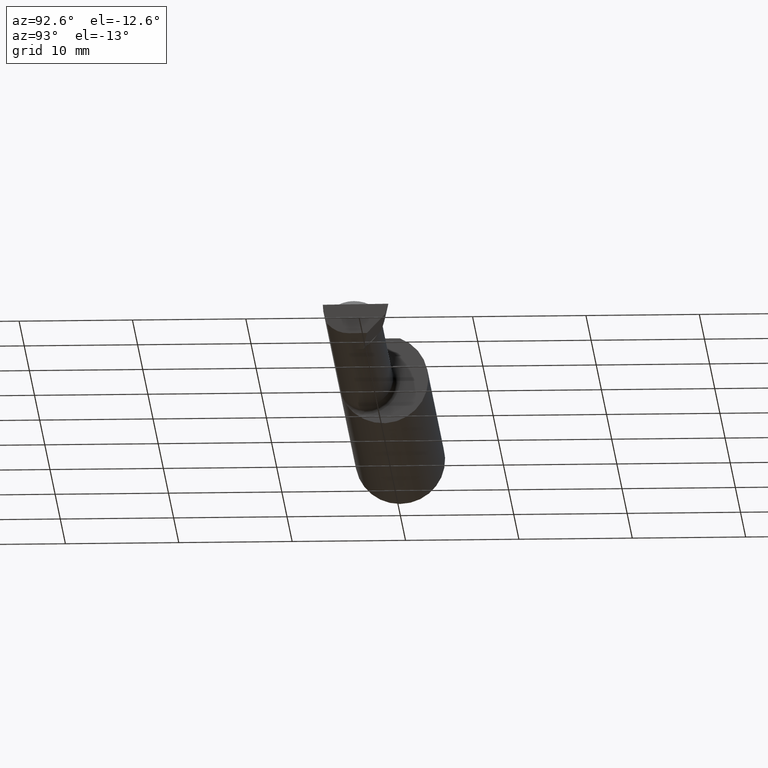
[diagram: clean part render]
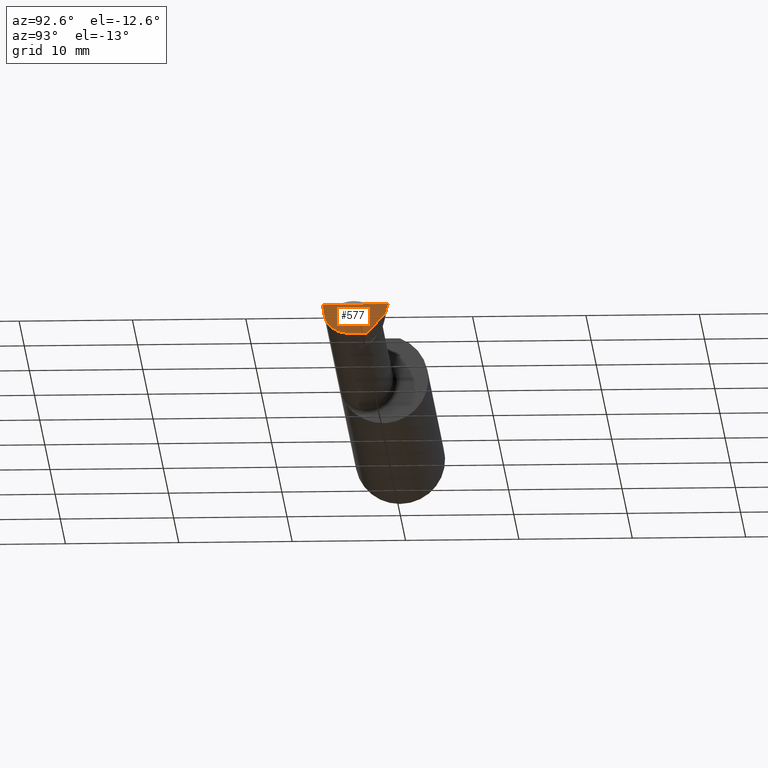
[diagram: same view with one face highlighted and labeled with its STEP entity id]
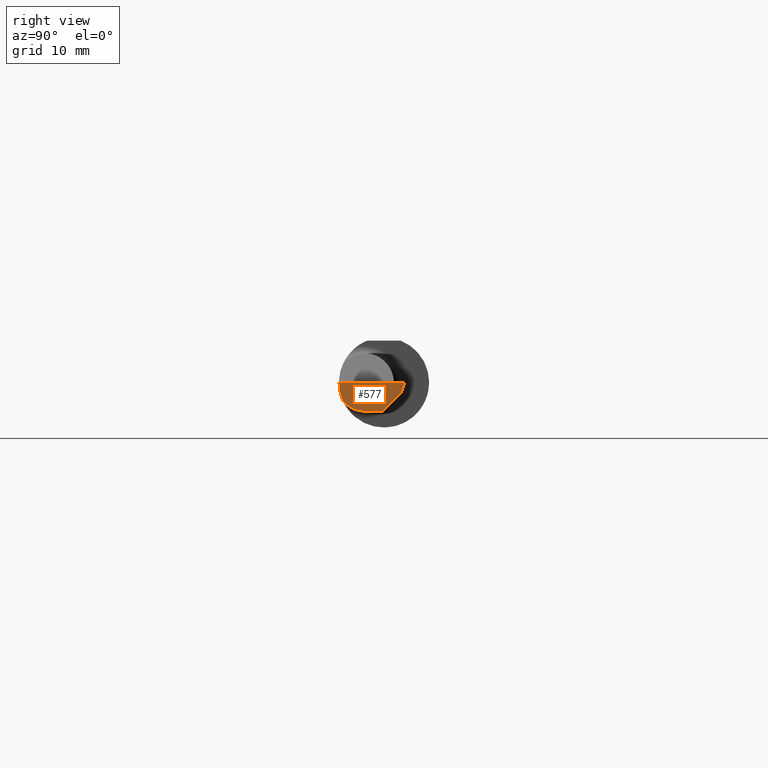
[diagram: same view with one face highlighted and labeled with its STEP entity id]
A machine part, auxiliary view. The second image highlights one B-rep face of the part: STEP entity #577.
A second angle (right view) of the same face is appended — the face is thin or edge-on in the first view.
In plain terms, the highlighted planar face has unit normal (-0.9922, 0.026, 0.1219).
Its self-contained STEP definition (entity closure, byte-faithful):
#9 = DIRECTION ( 'NONE',  ( 0.1240019227989686140, 0.3022330132596660612, 0.9451342385281262803 ) ) ;
#12 = ORIENTED_EDGE ( 'NONE', *, *, #209, .F. ) ;
#28 = EDGE_CURVE ( 'NONE', #164, #680, #353, .T. ) ;
#32 = LINE ( 'NONE', #33, #200 ) ;
#33 = CARTESIAN_POINT ( 'NONE',  ( 2.495690841152410577, 0.06258158045839970485, -0.03309662379331571036 ) ) ;
#63 = CARTESIAN_POINT ( 'NONE',  ( 2.500188977433819293, 0.07236059946466855131, 0.001440373173036951305 ) ) ;
#69 = EDGE_CURVE ( 'NONE', #670, #680, #316, .T. ) ;
#73 = CARTESIAN_POINT ( 'NONE',  ( 2.495407988494083629, 0.06070777456484782730, -0.03500000000000000333 ) ) ;
#95 = LINE ( 'NONE', #63, #612 ) ;
#96 = CARTESIAN_POINT ( 'NONE',  ( 2.486434241799654998, -0.1419939393939394501, -0.06484544066771573412 ) ) ;
#105 = VECTOR ( 'NONE', #614, 39.37007874015748143 ) ;
#129 = EDGE_CURVE ( 'NONE', #164, #139, #150, .T. ) ;
#139 = VERTEX_POINT ( 'NONE', #542 ) ;
#150 =( BOUNDED_CURVE ( )  B_SPLINE_CURVE ( 3, ( #96, #438, #380, #701 ),
 .UNSPECIFIED., .F., .F. ) 
 B_SPLINE_CURVE_WITH_KNOTS ( ( 4, 4 ),
 ( 0.9323538202062678915, 1.360746882514633382 ),
 .UNSPECIFIED. ) 
 CURVE ( )  GEOMETRIC_REPRESENTATION_ITEM ( )  RATIONAL_B_SPLINE_CURVE ( ( 1.000000000000000000, 0.9847649979006014576, 0.9847649979006014576, 1.000000000000000000 ) ) 
 REPRESENTATION_ITEM ( '' )  );
#151 = CARTESIAN_POINT ( 'NONE',  ( 2.484118579027826179, -0.06599999999999998923, -0.09990000000000000269 ) ) ;
#164 = VERTEX_POINT ( 'NONE', #507 ) ;
#174 = CARTESIAN_POINT ( 'NONE',  ( 2.484129461495571345, -0.06558441532346195868, -0.09990000000000000269 ) ) ;
#178 = EDGE_CURVE ( 'NONE', #322, #569, #95, .T. ) ;
#200 = VECTOR ( 'NONE', #422, 39.37007874015748854 ) ;
#209 = EDGE_CURVE ( 'NONE', #139, #569, #408, .T. ) ;
#214 = AXIS2_PLACEMENT_3D ( 'NONE', #224, #377, #511 ) ;
#224 = CARTESIAN_POINT ( 'NONE',  ( 2.482005098963840695, -0.1170392233017039929, -0.1062257522883767180 ) ) ;
#233 = CARTESIAN_POINT ( 'NONE',  ( 2.491576527842699562, -0.2497794236187485528, 6.912943690626120576E-17 ) ) ;
#260 = DIRECTION ( 'NONE',  ( -0.02617694830789217206, -0.9996573249755568158, 0.0000000000000000000 ) ) ;
#273 = ORIENTED_EDGE ( 'NONE', *, *, #129, .F. ) ;
#291 = ORIENTED_EDGE ( 'NONE', *, *, #69, .F. ) ;
#316 = LINE ( 'NONE', #174, #599 ) ;
#322 = VERTEX_POINT ( 'NONE', #73 ) ;
#353 =( BOUNDED_CURVE ( )  B_SPLINE_CURVE ( 3, ( #486, #374, #484, #151 ),
 .UNSPECIFIED., .F., .T. ) 
 B_SPLINE_CURVE_WITH_KNOTS ( ( 4, 4 ),
 ( 5.628843761710943028, 6.493234751459850074 ),
 .UNSPECIFIED. ) 
 CURVE ( )  GEOMETRIC_REPRESENTATION_ITEM ( )  RATIONAL_B_SPLINE_CURVE ( ( 1.000000000000000000, 0.9386988813357769468, 0.9386988813357769468, 1.000000000000000000 ) ) 
 REPRESENTATION_ITEM ( '' )  );
#363 = PLANE ( 'NONE',  #214 ) ;
#364 = EDGE_CURVE ( 'NONE', #670, #322, #32, .T. ) ;
#374 = CARTESIAN_POINT ( 'NONE',  ( 2.484162675884399540, -0.1227037540429563867, -0.08745207517224926064 ) ) ;
#377 = DIRECTION ( 'NONE',  ( -0.9922060308645437310, 0.02598182930471210073, 0.1218693434051771191 ) ) ;
#380 = CARTESIAN_POINT ( 'NONE',  ( 2.491270569402211699, -0.1560999999999999333, -0.02246288137099513443 ) ) ;
#394 = ORIENTED_EDGE ( 'NONE', *, *, #178, .T. ) ;
#408 = LINE ( 'NONE', #233, #105 ) ;
#412 = ORIENTED_EDGE ( 'NONE', *, *, #28, .T. ) ;
#417 = CARTESIAN_POINT ( 'NONE',  ( 2.484118579027826179, -0.06599999999999998923, -0.09990000000000000269 ) ) ;
#422 = DIRECTION ( 'NONE',  ( 0.1053106618242156955, 0.6976485211320162527, 0.7086580314005170855 ) ) ;
#438 = CARTESIAN_POINT ( 'NONE',  ( 2.488699611492197761, -0.1513252362624135094, -0.04441242967472185110 ) ) ;
#440 = CARTESIAN_POINT ( 'NONE',  ( 2.485763474991733002, -0.003183957434557327902, -0.09990000000000001656 ) ) ;
#470 = EDGE_LOOP ( 'NONE', ( #412, #291, #652, #394, #12, #273 ) ) ;
#484 = CARTESIAN_POINT ( 'NONE',  ( 2.483340380677750314, -0.09571819601686556989, -0.09989999999999991942 ) ) ;
#486 = CARTESIAN_POINT ( 'NONE',  ( 2.486434241799654998, -0.1419939393939394501, -0.06484544066771573412 ) ) ;
#507 = CARTESIAN_POINT ( 'NONE',  ( 2.486434241799654998, -0.1419939393939394501, -0.06484544066771573412 ) ) ;
#511 = DIRECTION ( 'NONE',  ( 0.1219104985253126050, 0.0000000000000000000, 0.9925410975618641496 ) ) ;
#542 = CARTESIAN_POINT ( 'NONE',  ( 2.494029609882228549, -0.1561000000000000165, 6.889038570631779204E-17 ) ) ;
#547 = CARTESIAN_POINT ( 'NONE',  ( 2.500000000000015543, 0.07190000000002047531, 6.193638301338760095E-14 ) ) ;
#569 = VERTEX_POINT ( 'NONE', #547 ) ;
#577 = ADVANCED_FACE ( 'NONE', ( #646 ), #363, .F. ) ;
#599 = VECTOR ( 'NONE', #260, 39.37007874015748143 ) ;
#612 = VECTOR ( 'NONE', #9, 39.37007874015748854 ) ;
#614 = DIRECTION ( 'NONE',  ( 0.02617694830789217553, 0.9996573249755568158, -2.550926060776988469E-18 ) ) ;
#646 = FACE_OUTER_BOUND ( 'NONE', #470, .T. ) ;
#652 = ORIENTED_EDGE ( 'NONE', *, *, #364, .T. ) ;
#670 = VERTEX_POINT ( 'NONE', #440 ) ;
#680 = VERTEX_POINT ( 'NONE', #417 ) ;
#701 = CARTESIAN_POINT ( 'NONE',  ( 2.494029609882228549, -0.1561000000000000165, 6.889038570631779204E-17 ) ) ;